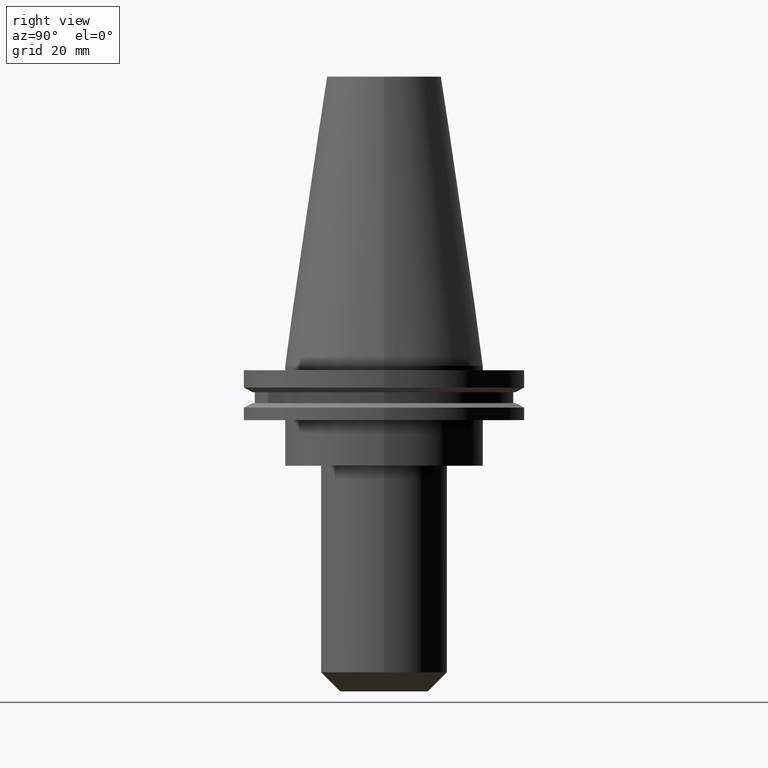
[diagram: clean part render]
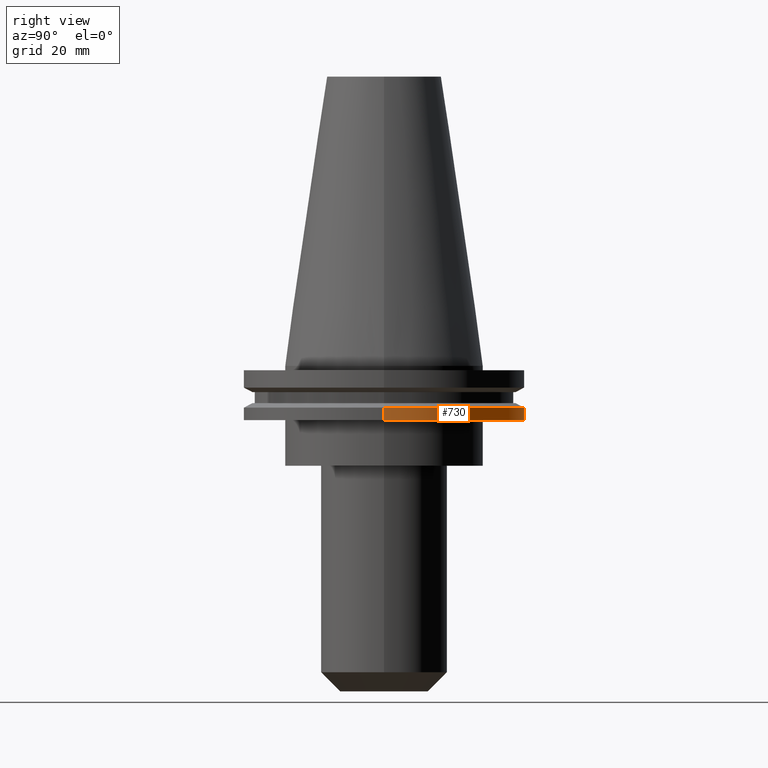
[diagram: same view with one face highlighted and labeled with its STEP entity id]
A machine part, right view. The second image highlights one B-rep face of the part: STEP entity #730.
In plain terms, the highlighted cylindrical surface (partial cylindrical patch) has radius 49.215 mm, axis along (-0, -0, 1).
Its self-contained STEP definition (entity closure, byte-faithful):
#7 = CARTESIAN_POINT ( 'NONE',  ( 0.000000000000000000, 0.000000000000000000, 101.5999999999999943 ) ) ;
#50 = CARTESIAN_POINT ( 'NONE',  ( 0.000000000000000000, 0.000000000000000000, -14.65761014474876944 ) ) ;
#61 = EDGE_CURVE ( 'NONE', #632, #359, #672, .T. ) ;
#88 = VECTOR ( 'NONE', #163, 1000.000000000000000 ) ;
#97 = CARTESIAN_POINT ( 'NONE',  ( -49.21499999999998920, 6.027099222003697037E-15, -14.65761014474876944 ) ) ;
#137 = LINE ( 'NONE', #556, #88 ) ;
#163 = DIRECTION ( 'NONE',  ( -0.000000000000000000, -0.000000000000000000, 1.000000000000000000 ) ) ;
#185 = CIRCLE ( 'NONE', #326, 49.21499999999998920 ) ;
#202 = DIRECTION ( 'NONE',  ( 1.000000000000000000, 0.000000000000000000, 0.000000000000000000 ) ) ;
#220 = CYLINDRICAL_SURFACE ( 'NONE', #503, 49.21499999999998920 ) ;
#227 = VERTEX_POINT ( 'NONE', #827 ) ;
#267 = DIRECTION ( 'NONE',  ( -0.000000000000000000, -0.000000000000000000, 1.000000000000000000 ) ) ;
#268 = DIRECTION ( 'NONE',  ( -0.000000000000000000, -0.000000000000000000, 1.000000000000000000 ) ) ;
#270 = DIRECTION ( 'NONE',  ( -0.000000000000000000, -0.000000000000000000, 1.000000000000000000 ) ) ;
#306 = LINE ( 'NONE', #570, #697 ) ;
#326 = AXIS2_PLACEMENT_3D ( 'NONE', #50, #268, #660 ) ;
#329 = VERTEX_POINT ( 'NONE', #97 ) ;
#350 = EDGE_CURVE ( 'NONE', #632, #227, #306, .T. ) ;
#359 = VERTEX_POINT ( 'NONE', #706 ) ;
#363 = ORIENTED_EDGE ( 'NONE', *, *, #61, .T. ) ;
#444 = EDGE_CURVE ( 'NONE', #359, #329, #137, .T. ) ;
#480 = AXIS2_PLACEMENT_3D ( 'NONE', #588, #267, #202 ) ;
#486 = ORIENTED_EDGE ( 'NONE', *, *, #444, .T. ) ;
#503 = AXIS2_PLACEMENT_3D ( 'NONE', #7, #270, #530 ) ;
#530 = DIRECTION ( 'NONE',  ( 1.000000000000000000, 0.000000000000000000, 0.000000000000000000 ) ) ;
#545 = FACE_OUTER_BOUND ( 'NONE', #705, .T. ) ;
#556 = CARTESIAN_POINT ( 'NONE',  ( -49.21499999999998920, 6.027099222003697037E-15, 101.5999999999999943 ) ) ;
#570 = CARTESIAN_POINT ( 'NONE',  ( 49.21499999999998920, 0.000000000000000000, 101.5999999999999943 ) ) ;
#574 = DIRECTION ( 'NONE',  ( -0.000000000000000000, -0.000000000000000000, 1.000000000000000000 ) ) ;
#588 = CARTESIAN_POINT ( 'NONE',  ( 0.000000000000000000, 0.000000000000000000, -19.04999999999999716 ) ) ;
#632 = VERTEX_POINT ( 'NONE', #812 ) ;
#660 = DIRECTION ( 'NONE',  ( 1.000000000000000000, 0.000000000000000000, 0.000000000000000000 ) ) ;
#672 = CIRCLE ( 'NONE', #480, 49.21499999999998920 ) ;
#697 = VECTOR ( 'NONE', #574, 1000.000000000000000 ) ;
#705 = EDGE_LOOP ( 'NONE', ( #363, #486, #756, #820 ) ) ;
#706 = CARTESIAN_POINT ( 'NONE',  ( -49.21499999999998920, 6.027099222003697037E-15, -19.04999999999999716 ) ) ;
#730 = ADVANCED_FACE ( 'NONE', ( #545 ), #220, .T. ) ;
#756 = ORIENTED_EDGE ( 'NONE', *, *, #788, .F. ) ;
#788 = EDGE_CURVE ( 'NONE', #227, #329, #185, .T. ) ;
#812 = CARTESIAN_POINT ( 'NONE',  ( 49.21499999999998920, 0.000000000000000000, -19.04999999999999716 ) ) ;
#820 = ORIENTED_EDGE ( 'NONE', *, *, #350, .F. ) ;
#827 = CARTESIAN_POINT ( 'NONE',  ( 49.21499999999998920, 0.000000000000000000, -14.65761014474876944 ) ) ;